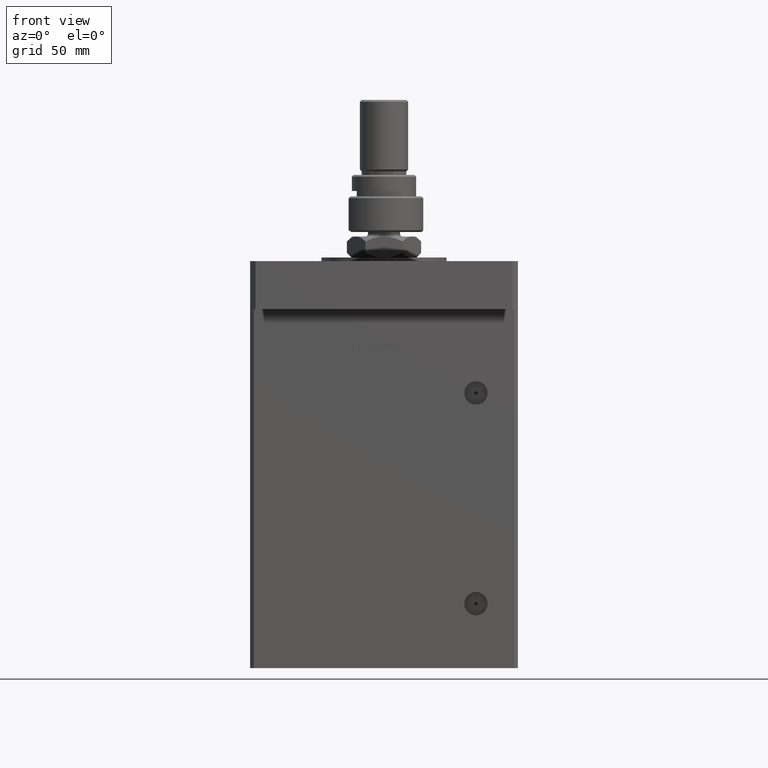
[diagram: clean part render]
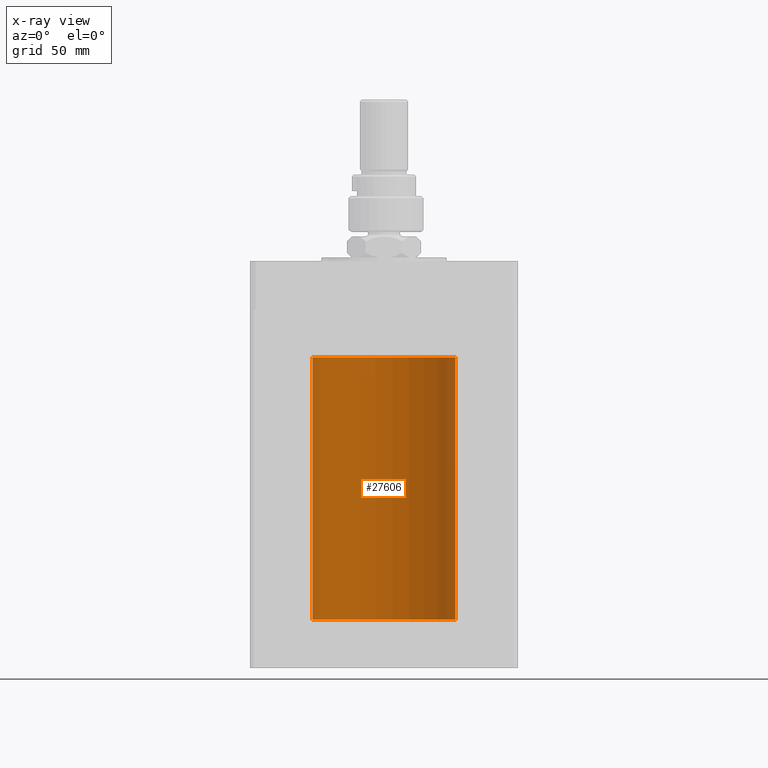
[diagram: x-ray — body ghosted, one internal face saturated and labeled with its STEP entity id]
A machine part, front view, then the same camera in x-ray: the body is ghosted and one INTERNAL B-rep face — a face not visible from any outside direction — is saturated and labeled: STEP entity #27606.
In plain terms, the highlighted cylindrical surface (partial cylindrical patch) has radius 40 mm, axis along (-0, -0, -1).
Its self-contained STEP definition (entity closure, byte-faithful):
#1674 = DIRECTION ( 'NONE',  ( -0.000000000000000000, -0.000000000000000000, -1.000000000000000000 ) ) ;
#1749 = EDGE_CURVE ( 'NONE', #38886, #48343, #16096, .T. ) ;
#2012 = VERTEX_POINT ( 'NONE', #18073 ) ;
#2933 = ORIENTED_EDGE ( 'NONE', *, *, #45976, .T. ) ;
#3557 = DIRECTION ( 'NONE',  ( 1.000000000000000000, 0.000000000000000000, 0.000000000000000000 ) ) ;
#4247 = LINE ( 'NONE', #52181, #6613 ) ;
#6613 = VECTOR ( 'NONE', #33888, 1000.000000000000000 ) ;
#8094 = DIRECTION ( 'NONE',  ( 1.000000000000000000, 0.000000000000000000, 0.000000000000000000 ) ) ;
#10369 = VECTOR ( 'NONE', #1674, 1000.000000000000000 ) ;
#12629 = VERTEX_POINT ( 'NONE', #36384 ) ;
#16096 = LINE ( 'NONE', #23604, #10369 ) ;
#18073 = CARTESIAN_POINT ( 'NONE',  ( 40.00000000000000000, 4.898587196589413026E-15, 0.000000000000000000 ) ) ;
#19846 = DIRECTION ( 'NONE',  ( -0.000000000000000000, -0.000000000000000000, -1.000000000000000000 ) ) ;
#21187 = CARTESIAN_POINT ( 'NONE',  ( 0.000000000000000000, 0.000000000000000000, 0.000000000000000000 ) ) ;
#23604 = CARTESIAN_POINT ( 'NONE',  ( -40.00000000000000000, 0.000000000000000000, 147.0000000000000000 ) ) ;
#23841 = CARTESIAN_POINT ( 'NONE',  ( 0.000000000000000000, 0.000000000000000000, 147.0000000000000000 ) ) ;
#23870 = EDGE_LOOP ( 'NONE', ( #34947, #2933, #32052, #37277 ) ) ;
#27412 = EDGE_CURVE ( 'NONE', #12629, #2012, #4247, .T. ) ;
#27606 = ADVANCED_FACE ( 'NONE', ( #54134 ), #45549, .F. ) ;
#27730 = EDGE_CURVE ( 'NONE', #2012, #48343, #37561, .T. ) ;
#29676 = AXIS2_PLACEMENT_3D ( 'NONE', #42642, #35171, #3557 ) ;
#32052 = ORIENTED_EDGE ( 'NONE', *, *, #1749, .T. ) ;
#33888 = DIRECTION ( 'NONE',  ( -0.000000000000000000, -0.000000000000000000, -1.000000000000000000 ) ) ;
#34947 = ORIENTED_EDGE ( 'NONE', *, *, #27412, .F. ) ;
#35171 = DIRECTION ( 'NONE',  ( -0.000000000000000000, 0.000000000000000000, 1.000000000000000000 ) ) ;
#36384 = CARTESIAN_POINT ( 'NONE',  ( 40.00000000000000000, 4.898587196589413026E-15, 147.0000000000000000 ) ) ;
#37277 = ORIENTED_EDGE ( 'NONE', *, *, #27730, .F. ) ;
#37561 = CIRCLE ( 'NONE', #55857, 40.00000000000000000 ) ;
#38156 = CARTESIAN_POINT ( 'NONE',  ( -40.00000000000000000, 0.000000000000000000, 147.0000000000000000 ) ) ;
#38886 = VERTEX_POINT ( 'NONE', #38156 ) ;
#41226 = AXIS2_PLACEMENT_3D ( 'NONE', #23841, #19846, #41267 ) ;
#41267 = DIRECTION ( 'NONE',  ( -1.000000000000000000, 0.000000000000000000, 0.000000000000000000 ) ) ;
#41787 = CARTESIAN_POINT ( 'NONE',  ( -40.00000000000000000, 0.000000000000000000, 0.000000000000000000 ) ) ;
#42642 = CARTESIAN_POINT ( 'NONE',  ( 0.000000000000000000, 0.000000000000000000, 147.0000000000000000 ) ) ;
#45549 = CYLINDRICAL_SURFACE ( 'NONE', #41226, 40.00000000000000000 ) ;
#45976 = EDGE_CURVE ( 'NONE', #12629, #38886, #54301, .T. ) ;
#48343 = VERTEX_POINT ( 'NONE', #41787 ) ;
#52181 = CARTESIAN_POINT ( 'NONE',  ( 40.00000000000000000, 4.898587196589413026E-15, 147.0000000000000000 ) ) ;
#52597 = DIRECTION ( 'NONE',  ( -0.000000000000000000, 0.000000000000000000, 1.000000000000000000 ) ) ;
#54134 = FACE_OUTER_BOUND ( 'NONE', #23870, .T. ) ;
#54301 = CIRCLE ( 'NONE', #29676, 40.00000000000000000 ) ;
#55857 = AXIS2_PLACEMENT_3D ( 'NONE', #21187, #52597, #8094 ) ;